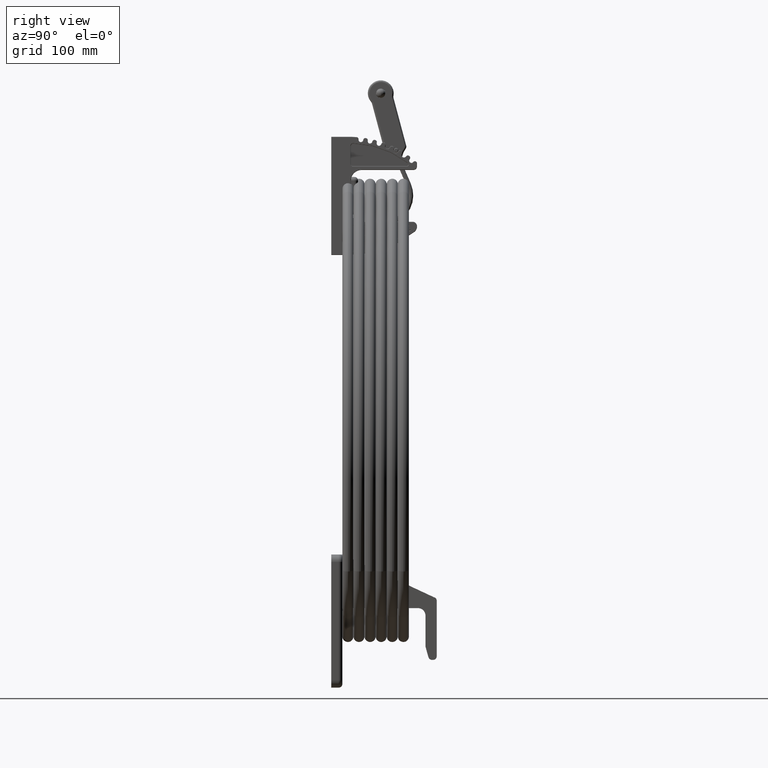
[diagram: clean part render]
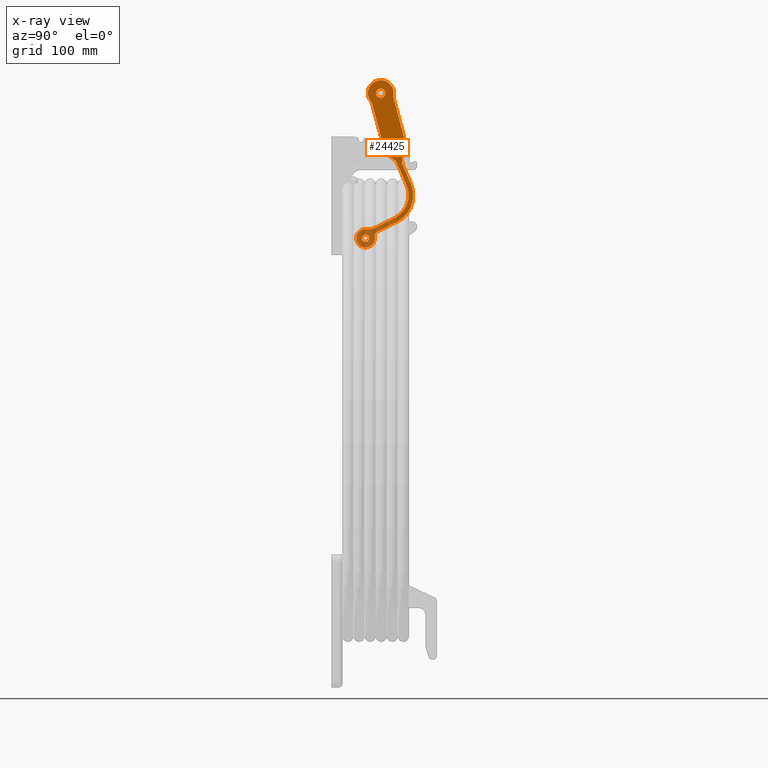
[diagram: x-ray — body ghosted, one internal face saturated and labeled with its STEP entity id]
A machine part, right view, then the same camera in x-ray: the body is ghosted and one INTERNAL B-rep face — a face not visible from any outside direction — is saturated and labeled: STEP entity #24425.
In plain terms, the highlighted planar face has unit normal (-1, 0, 0).
Its self-contained STEP definition (entity closure, byte-faithful):
#1034 = CARTESIAN_POINT ( 'NONE',  ( 0.4554401961130530900, -1.576848098390637200, 0.0000000000000000000 ) ) ;
#1040 = DIRECTION ( 'NONE',  ( 0.0000000000000000000, 0.0000000000000000000, 1.000000000000000000 ) ) ;
#1041 = DIRECTION ( 'NONE',  ( 1.000000000000000000, 0.0000000000000000000, 0.0000000000000000000 ) ) ;
#1042 = CARTESIAN_POINT ( 'NONE',  ( 2.644572853812336100, -0.02049999999999994200, 0.0000000000000000000 ) ) ;
#1044 = DIRECTION ( 'NONE',  ( -0.0000000000000000000, -0.0000000000000000000, -1.000000000000000000 ) ) ;
#1045 = DIRECTION ( 'NONE',  ( 1.000000000000000000, -3.551402391763545100E-015, 0.0000000000000000000 ) ) ;
#1048 = CARTESIAN_POINT ( 'NONE',  ( 0.7181599584110993600, -1.168933562693649500, 0.0000000000000000000 ) ) ;
#1049 = DIRECTION ( 'NONE',  ( 0.2023567821403770800, 0.9793118669360603200, 0.0000000000000000000 ) ) ;
#1050 = CARTESIAN_POINT ( 'NONE',  ( 2.644572853812336100, 0.1045000000000000400, 0.0000000000000000000 ) ) ;
#1051 = DIRECTION ( 'NONE',  ( 0.9891385689570009200, -0.1469860245115035300, 0.0000000000000000000 ) ) ;
#1054 = CARTESIAN_POINT ( 'NONE',  ( 1.207815891879129300, -1.270111953763838100, 0.0000000000000000000 ) ) ;
#1055 = DIRECTION ( 'NONE',  ( -0.0000000000000000000, -0.0000000000000000000, -1.000000000000000000 ) ) ;
#1056 = DIRECTION ( 'NONE',  ( 1.000000000000000000, 3.824587191129968100E-015, 0.0000000000000000000 ) ) ;
#1059 = CARTESIAN_POINT ( 'NONE',  ( 1.207815891879129300, -1.270111953763838100, 0.0000000000000000000 ) ) ;
#1060 = DIRECTION ( 'NONE',  ( -0.0000000000000000000, -0.0000000000000000000, -1.000000000000000000 ) ) ;
#1061 = DIRECTION ( 'NONE',  ( 1.000000000000000000, 0.0000000000000000000, 0.0000000000000000000 ) ) ;
#1065 = CARTESIAN_POINT ( 'NONE',  ( 1.702915872735392400, -0.6177902567614397300, 0.0000000000000000000 ) ) ;
#1067 = DIRECTION ( 'NONE',  ( -0.0000000000000000000, -0.0000000000000000000, -1.000000000000000000 ) ) ;
#1068 = DIRECTION ( 'NONE',  ( 1.000000000000000000, 0.0000000000000000000, 0.0000000000000000000 ) ) ;
#1089 = CARTESIAN_POINT ( 'NONE',  ( 0.4554401961130530900, -1.576848098390637200, 0.0000000000000000000 ) ) ;
#1093 = DIRECTION ( 'NONE',  ( 0.0000000000000000000, 0.0000000000000000000, 1.000000000000000000 ) ) ;
#1094 = DIRECTION ( 'NONE',  ( 1.000000000000000000, 0.0000000000000000000, 0.0000000000000000000 ) ) ;
#1098 = CARTESIAN_POINT ( 'NONE',  ( 0.4554401961130530900, -1.576848098390637200, 0.0000000000000000000 ) ) ;
#1099 = DIRECTION ( 'NONE',  ( 0.0000000000000000000, 0.0000000000000000000, 1.000000000000000000 ) ) ;
#1100 = DIRECTION ( 'NONE',  ( 1.000000000000000000, 0.0000000000000000000, 0.0000000000000000000 ) ) ;
#6412 = ORIENTED_EDGE ( 'NONE', *, *, #9688, .T. ) ;
#6413 = ORIENTED_EDGE ( 'NONE', *, *, #9683, .T. ) ;
#6414 = ORIENTED_EDGE ( 'NONE', *, *, #9690, .T. ) ;
#6415 = ORIENTED_EDGE ( 'NONE', *, *, #9684, .T. ) ;
#6416 = ORIENTED_EDGE ( 'NONE', *, *, #9681, .T. ) ;
#6417 = ORIENTED_EDGE ( 'NONE', *, *, #32606, .T. ) ;
#6418 = ORIENTED_EDGE ( 'NONE', *, *, #32607, .T. ) ;
#6419 = ORIENTED_EDGE ( 'NONE', *, *, #32608, .T. ) ;
#6420 = ORIENTED_EDGE ( 'NONE', *, *, #32617, .T. ) ;
#6421 = ORIENTED_EDGE ( 'NONE', *, *, #32618, .T. ) ;
#6422 = ORIENTED_EDGE ( 'NONE', *, *, #32615, .T. ) ;
#6423 = ORIENTED_EDGE ( 'NONE', *, *, #32616, .T. ) ;
#6424 = ORIENTED_EDGE ( 'NONE', *, *, #32613, .T. ) ;
#6425 = ORIENTED_EDGE ( 'NONE', *, *, #32614, .T. ) ;
#6426 = ORIENTED_EDGE ( 'NONE', *, *, #32611, .T. ) ;
#6427 = ORIENTED_EDGE ( 'NONE', *, *, #32612, .T. ) ;
#6428 = ORIENTED_EDGE ( 'NONE', *, *, #32609, .T. ) ;
#6429 = ORIENTED_EDGE ( 'NONE', *, *, #32610, .T. ) ;
#6430 = ORIENTED_EDGE ( 'NONE', *, *, #32699, .F. ) ;
#6431 = ORIENTED_EDGE ( 'NONE', *, *, #32620, .F. ) ;
#6432 = ORIENTED_EDGE ( 'NONE', *, *, #9617, .F. ) ;
#6433 = ORIENTED_EDGE ( 'NONE', *, *, #32619, .F. ) ;
#6434 = ORIENTED_EDGE ( 'NONE', *, *, #9613, .F. ) ;
#6435 = ORIENTED_EDGE ( 'NONE', *, *, #32621, .F. ) ;
#7809 = ORIENTED_EDGE ( 'NONE', *, *, #9680, .T. ) ;
#7810 = ORIENTED_EDGE ( 'NONE', *, *, #9702, .T. ) ;
#7811 = ORIENTED_EDGE ( 'NONE', *, *, #9700, .T. ) ;
#7812 = ORIENTED_EDGE ( 'NONE', *, *, #9686, .T. ) ;
#9613 = EDGE_CURVE ( 'NONE', #21692, #21598, #29348, .T. ) ;
#9617 = EDGE_CURVE ( 'NONE', #21656, #21404, #29353, .T. ) ;
#9680 = EDGE_CURVE ( 'NONE', #21468, #21367, #29449, .T. ) ;
#9681 = EDGE_CURVE ( 'NONE', #21567, #21561, #29451, .T. ) ;
#9683 = EDGE_CURVE ( 'NONE', #21390, #21542, #29447, .T. ) ;
#9684 = EDGE_CURVE ( 'NONE', #21558, #21567, #29454, .T. ) ;
#9686 = EDGE_CURVE ( 'NONE', #21638, #21377, #29458, .T. ) ;
#9688 = EDGE_CURVE ( 'NONE', #21377, #21390, #29460, .T. ) ;
#9690 = EDGE_CURVE ( 'NONE', #21542, #21558, #29462, .T. ) ;
#9700 = EDGE_CURVE ( 'NONE', #21663, #21638, #29476, .T. ) ;
#9702 = EDGE_CURVE ( 'NONE', #21367, #21663, #29479, .T. ) ;
#9924 = PLANE ( 'NONE',  #29147 ) ;
#9928 = CARTESIAN_POINT ( 'NONE',  ( 0.0000000000000000000, 0.0000000000000000000, 0.0000000000000000000 ) ) ;
#9929 = DIRECTION ( 'NONE',  ( 0.0000000000000000000, 0.0000000000000000000, 1.000000000000000000 ) ) ;
#9930 = DIRECTION ( 'NONE',  ( 1.000000000000000000, 0.0000000000000000000, -0.0000000000000000000 ) ) ;
#13703 = LINE ( 'NONE', #17335, #13715 ) ;
#13707 = LINE ( 'NONE', #17323, #13709 ) ;
#13709 = VECTOR ( 'NONE', #17324, 39.37007874015748100 ) ;
#13710 = LINE ( 'NONE', #17328, #13713 ) ;
#13713 = VECTOR ( 'NONE', #17329, 39.37007874015748100 ) ;
#13715 = VECTOR ( 'NONE', #17336, 39.37007874015747400 ) ;
#13716 = CIRCLE ( 'NONE', #25358, 0.5000000000000001100 ) ;
#13717 = LINE ( 'NONE', #17330, #13718 ) ;
#13718 = VECTOR ( 'NONE', #17331, 39.37007874015748900 ) ;
#13719 = LINE ( 'NONE', #17349, #13723 ) ;
#13720 = CIRCLE ( 'NONE', #25357, 0.1624932898991209000 ) ;
#13721 = CIRCLE ( 'NONE', #25360, 1.009105567046599200 ) ;
#13722 = CIRCLE ( 'NONE', #25359, 0.1249999999999999000 ) ;
#13723 = VECTOR ( 'NONE', #17350, 39.37007874015748100 ) ;
#13724 = CIRCLE ( 'NONE', #25361, 0.6250000000000000000 ) ;
#13725 = CIRCLE ( 'NONE', #25362, 0.1249999999999999000 ) ;
#13726 = CIRCLE ( 'NONE', #25364, 0.1249999999999999000 ) ;
#13727 = CIRCLE ( 'NONE', #25363, 0.4374999999999998900 ) ;
#13728 = CIRCLE ( 'NONE', #25365, 0.1562500000000019200 ) ;
#13729 = CIRCLE ( 'NONE', #25366, 0.07800000000000009700 ) ;
#13730 = CIRCLE ( 'NONE', #25356, 0.1250000000000000300 ) ;
#13814 = CIRCLE ( 'NONE', #25443, 0.07800000000000009700 ) ;
#17316 = CARTESIAN_POINT ( 'NONE',  ( 3.234208584750652500, 0.3125000000000000000, 0.0000000000000000000 ) ) ;
#17320 = CARTESIAN_POINT ( 'NONE',  ( 0.4060108721066491600, -1.104433696220825900, 0.0000000000000000000 ) ) ;
#17323 = CARTESIAN_POINT ( 'NONE',  ( 2.721370042664140100, 0.07812652677885632800, 0.0000000000000000000 ) ) ;
#17324 = DIRECTION ( 'NONE',  ( 0.7890122142308524400, -0.6143775108144238200, 0.0000000000000000000 ) ) ;
#17325 = CARTESIAN_POINT ( 'NONE',  ( 1.702915872735392400, -0.6177902567614397300, 0.0000000000000000000 ) ) ;
#17326 = DIRECTION ( 'NONE',  ( 0.0000000000000000000, 0.0000000000000000000, 1.000000000000000000 ) ) ;
#17327 = DIRECTION ( 'NONE',  ( 1.000000000000000000, 0.0000000000000000000, 0.0000000000000000000 ) ) ;
#17328 = CARTESIAN_POINT ( 'NONE',  ( 3.234208584750654800, -0.1875000000000000600, 0.0000000000000000000 ) ) ;
#17329 = DIRECTION ( 'NONE',  ( 1.000000000000000000, -4.348422046066390200E-017, 0.0000000000000000000 ) ) ;
#17330 = CARTESIAN_POINT ( 'NONE',  ( 0.5651424792023397300, -1.137315315484215500, 0.0000000000000000000 ) ) ;
#17331 = DIRECTION ( 'NONE',  ( -0.2023567821403768600, -0.9793118669360603200, 0.0000000000000000000 ) ) ;
#17332 = CARTESIAN_POINT ( 'NONE',  ( 3.127005977522338200, 0.4375000000000001700, 0.0000000000000000000 ) ) ;
#17333 = DIRECTION ( 'NONE',  ( -0.0000000000000000000, -0.0000000000000000000, -1.000000000000000000 ) ) ;
#17334 = DIRECTION ( 'NONE',  ( 1.000000000000000000, 8.406033244081184400E-016, 0.0000000000000000000 ) ) ;
#17335 = CARTESIAN_POINT ( 'NONE',  ( 1.851240288347998400, 0.3803549797535765700, 0.0000000000000000000 ) ) ;
#17336 = DIRECTION ( 'NONE',  ( -0.9891385689570010300, 0.1469860245115031900, 0.0000000000000000000 ) ) ;
#17337 = CARTESIAN_POINT ( 'NONE',  ( 2.535879563826081800, 0.8990945873064399900, 0.0000000000000000000 ) ) ;
#17338 = DIRECTION ( 'NONE',  ( 0.0000000000000000000, 0.0000000000000000000, 1.000000000000000000 ) ) ;
#17339 = DIRECTION ( 'NONE',  ( 1.000000000000000000, 0.0000000000000000000, 0.0000000000000000000 ) ) ;
#17340 = CARTESIAN_POINT ( 'NONE',  ( 4.804805898398895700, 0.6875000000000000000, 0.0000000000000000000 ) ) ;
#17341 = DIRECTION ( 'NONE',  ( 0.0000000000000000000, 0.0000000000000000000, 1.000000000000000000 ) ) ;
#17342 = DIRECTION ( 'NONE',  ( 1.000000000000000000, 0.0000000000000000000, 0.0000000000000000000 ) ) ;
#17343 = CARTESIAN_POINT ( 'NONE',  ( 4.804805898398895700, -0.3125000000000001700, 0.0000000000000000000 ) ) ;
#17344 = DIRECTION ( 'NONE',  ( -0.0000000000000000000, -0.0000000000000000000, -1.000000000000000000 ) ) ;
#17345 = DIRECTION ( 'NONE',  ( 1.000000000000000000, -8.741913579725642300E-016, 0.0000000000000000000 ) ) ;
#17346 = CARTESIAN_POINT ( 'NONE',  ( 5.062500000000000000, 0.1874999999999999200, 0.0000000000000000000 ) ) ;
#17347 = DIRECTION ( 'NONE',  ( -0.0000000000000000000, -0.0000000000000000000, -1.000000000000000000 ) ) ;
#17348 = DIRECTION ( 'NONE',  ( 1.000000000000000000, -1.092739197465706100E-015, 0.0000000000000000000 ) ) ;
#17349 = CARTESIAN_POINT ( 'NONE',  ( 3.127005977522338200, 0.5625000000000002200, 0.0000000000000000000 ) ) ;
#17350 = DIRECTION ( 'NONE',  ( -1.000000000000000000, 1.628232281854575500E-016, 0.0000000000000000000 ) ) ;
#17351 = CARTESIAN_POINT ( 'NONE',  ( 5.062500000000000000, 0.1874999999999999200, 0.0000000000000000000 ) ) ;
#17352 = DIRECTION ( 'NONE',  ( -0.0000000000000000000, -0.0000000000000000000, -1.000000000000000000 ) ) ;
#17353 = DIRECTION ( 'NONE',  ( 1.000000000000000000, -1.639108796198559100E-015, 0.0000000000000000000 ) ) ;
#17354 = CARTESIAN_POINT ( 'NONE',  ( 3.062500000000000000, 0.1874999999999999200, 0.0000000000000000000 ) ) ;
#17355 = DIRECTION ( 'NONE',  ( 0.0000000000000000000, 0.0000000000000000000, 1.000000000000000000 ) ) ;
#17356 = DIRECTION ( 'NONE',  ( 1.000000000000000000, 0.0000000000000000000, 0.0000000000000000000 ) ) ;
#17357 = DIRECTION ( 'NONE',  ( 0.0000000000000000000, 0.0000000000000000000, 1.000000000000000000 ) ) ;
#17358 = DIRECTION ( 'NONE',  ( 1.000000000000000000, 0.0000000000000000000, 0.0000000000000000000 ) ) ;
#17360 = DIRECTION ( 'NONE',  ( 0.0000000000000000000, 0.0000000000000000000, 1.000000000000000000 ) ) ;
#17361 = DIRECTION ( 'NONE',  ( 1.000000000000000000, 0.0000000000000000000, 0.0000000000000000000 ) ) ;
#17362 = CARTESIAN_POINT ( 'NONE',  ( 0.4554401961130530900, -1.576848098390637200, 0.0000000000000000000 ) ) ;
#17363 = DIRECTION ( 'NONE',  ( 0.0000000000000000000, 0.0000000000000000000, 1.000000000000000000 ) ) ;
#17364 = DIRECTION ( 'NONE',  ( 1.000000000000000000, 0.0000000000000000000, 0.0000000000000000000 ) ) ;
#17586 = CARTESIAN_POINT ( 'NONE',  ( 3.062500000000000000, 0.1874999999999999200, 0.0000000000000000000 ) ) ;
#17595 = DIRECTION ( 'NONE',  ( 0.0000000000000000000, 0.0000000000000000000, 1.000000000000000000 ) ) ;
#17596 = DIRECTION ( 'NONE',  ( 1.000000000000000000, 0.0000000000000000000, 0.0000000000000000000 ) ) ;
#18083 = EDGE_LOOP ( 'NONE', ( #6434, #6435 ) ) ;
#18084 = EDGE_LOOP ( 'NONE', ( #6432, #6433 ) ) ;
#18086 = EDGE_LOOP ( 'NONE', ( #6430, #6431 ) ) ;
#18088 = EDGE_LOOP ( 'NONE', ( #7809, #7810, #7811, #7812, #6412, #6413, #6414, #6415, #6416, #6417, #6418, #6419, #6420, #6421, #6422, #6423, #6424, #6425, #6426, #6427, #6428, #6429 ) ) ;
#20071 = CARTESIAN_POINT ( 'NONE',  ( 2.984499999999999700, 0.1874999999999999200, 0.0000000000000000000 ) ) ;
#20073 = CARTESIAN_POINT ( 'NONE',  ( 0.1429401961130530600, -1.576848098390637200, 0.0000000000000000000 ) ) ;
#20074 = CARTESIAN_POINT ( 'NONE',  ( 0.7146868159354151700, -0.4135909013739492200, 1.365923996832131600E-016 ) ) ;
#20079 = CARTESIAN_POINT ( 'NONE',  ( 0.7078158918791294100, -1.270111953763838100, 0.0000000000000000000 ) ) ;
#20086 = CARTESIAN_POINT ( 'NONE',  ( 0.7181599584110993600, -1.168933562693649500, 1.365923996832131600E-016 ) ) ;
#20091 = CARTESIAN_POINT ( 'NONE',  ( 4.862071254310252200, -0.2013888888888888100, 1.365923996832131600E-016 ) ) ;
#20092 = CARTESIAN_POINT ( 'NONE',  ( 3.234208584750654800, -0.1875000000000000600, 1.365923996832131600E-016 ) ) ;
#20093 = CARTESIAN_POINT ( 'NONE',  ( 5.218750000000001800, 0.1874999999999999400, 0.0000000000000000000 ) ) ;
#20112 = CARTESIAN_POINT ( 'NONE',  ( 3.140499999999999800, 0.1874999999999999200, 0.0000000000000000000 ) ) ;
#20118 = CARTESIAN_POINT ( 'NONE',  ( 1.851240288347998400, 0.3803549797535765700, 1.365923996832131600E-016 ) ) ;
#20119 = CARTESIAN_POINT ( 'NONE',  ( 3.127005977522338200, 0.5625000000000002200, 1.365923996832131600E-016 ) ) ;
#20123 = CARTESIAN_POINT ( 'NONE',  ( 4.804805898398895700, -0.1875000000000000800, 1.365923996832131600E-016 ) ) ;
#20126 = CARTESIAN_POINT ( 'NONE',  ( 0.4229204446123912600, -1.266044759022581000, 1.365923996832131600E-016 ) ) ;
#20135 = CARTESIAN_POINT ( 'NONE',  ( 4.804805898398895700, 0.5624999999999998900, 1.365923996832131600E-016 ) ) ;
#20146 = CARTESIAN_POINT ( 'NONE',  ( 4.862071254310252200, 0.5763888888888888400, 1.365923996832131600E-016 ) ) ;
#20150 = CARTESIAN_POINT ( 'NONE',  ( 3.028484908572962400, 0.5144324312177399600, 1.365923996832131600E-016 ) ) ;
#20163 = CARTESIAN_POINT ( 'NONE',  ( 0.8677042951441749100, -0.4452091485833831700, 1.365923996832131600E-016 ) ) ;
#20171 = CARTESIAN_POINT ( 'NONE',  ( 1.828273722018075800, 0.2258020783540451700, 1.365923996832131600E-016 ) ) ;
#20173 = CARTESIAN_POINT ( 'NONE',  ( 2.721370042664140100, 0.07812652677885632800, 1.365923996832131600E-016 ) ) ;
#20176 = CARTESIAN_POINT ( 'NONE',  ( 2.644572853812336100, 0.1045000000000001900, 1.365923996832131600E-016 ) ) ;
#20183 = CARTESIAN_POINT ( 'NONE',  ( 2.927019829343439700, -0.08200610711542515000, 1.365923996832131600E-016 ) ) ;
#20192 = CARTESIAN_POINT ( 'NONE',  ( 0.5804401961130530900, -1.576848098390637200, 0.0000000000000000000 ) ) ;
#20203 = CARTESIAN_POINT ( 'NONE',  ( 2.562500000000000000, 0.2746617627545026000, 1.365923996832131600E-016 ) ) ;
#20211 = CARTESIAN_POINT ( 'NONE',  ( 0.5651424792023397300, -1.137315315484215500, 1.365923996832131600E-016 ) ) ;
#20212 = CARTESIAN_POINT ( 'NONE',  ( 0.7448154637153900900, -1.458872658149560600, 1.365923996832131600E-016 ) ) ;
#20221 = CARTESIAN_POINT ( 'NONE',  ( 4.906249999999998200, 0.1874999999999999200, 0.0000000000000000000 ) ) ;
#20224 = CARTESIAN_POINT ( 'NONE',  ( 0.7679401961130530900, -1.576848098390637200, 0.0000000000000000000 ) ) ;
#20240 = CARTESIAN_POINT ( 'NONE',  ( 0.3304401961130530300, -1.576848098390637200, 0.0000000000000000000 ) ) ;
#21364 = VERTEX_POINT ( 'NONE', #20071 ) ;
#21367 = VERTEX_POINT ( 'NONE', #20073 ) ;
#21369 = VERTEX_POINT ( 'NONE', #20074 ) ;
#21377 = VERTEX_POINT ( 'NONE', #20079 ) ;
#21390 = VERTEX_POINT ( 'NONE', #20086 ) ;
#21400 = VERTEX_POINT ( 'NONE', #20091 ) ;
#21402 = VERTEX_POINT ( 'NONE', #20092 ) ;
#21404 = VERTEX_POINT ( 'NONE', #20093 ) ;
#21441 = VERTEX_POINT ( 'NONE', #20112 ) ;
#21452 = VERTEX_POINT ( 'NONE', #20118 ) ;
#21454 = VERTEX_POINT ( 'NONE', #20119 ) ;
#21463 = VERTEX_POINT ( 'NONE', #20123 ) ;
#21468 = VERTEX_POINT ( 'NONE', #20126 ) ;
#21487 = VERTEX_POINT ( 'NONE', #20135 ) ;
#21509 = VERTEX_POINT ( 'NONE', #20146 ) ;
#21515 = VERTEX_POINT ( 'NONE', #20150 ) ;
#21542 = VERTEX_POINT ( 'NONE', #20163 ) ;
#21558 = VERTEX_POINT ( 'NONE', #20171 ) ;
#21561 = VERTEX_POINT ( 'NONE', #20173 ) ;
#21567 = VERTEX_POINT ( 'NONE', #20176 ) ;
#21580 = VERTEX_POINT ( 'NONE', #20183 ) ;
#21598 = VERTEX_POINT ( 'NONE', #20192 ) ;
#21619 = VERTEX_POINT ( 'NONE', #20203 ) ;
#21636 = VERTEX_POINT ( 'NONE', #20211 ) ;
#21638 = VERTEX_POINT ( 'NONE', #20212 ) ;
#21656 = VERTEX_POINT ( 'NONE', #20221 ) ;
#21663 = VERTEX_POINT ( 'NONE', #20224 ) ;
#21692 = VERTEX_POINT ( 'NONE', #20240 ) ;
#24425 = ADVANCED_FACE ( 'NONE', ( #30970, #30971, #30973, #30975 ), #9924, .T. ) ;
#25356 = AXIS2_PLACEMENT_3D ( 'NONE', #17362, #17363, #17364 ) ;
#25357 = AXIS2_PLACEMENT_3D ( 'NONE', #17320, #17333, #17334 ) ;
#25358 = AXIS2_PLACEMENT_3D ( 'NONE', #17316, #17326, #17327 ) ;
#25359 = AXIS2_PLACEMENT_3D ( 'NONE', #17332, #17341, #17342 ) ;
#25360 = AXIS2_PLACEMENT_3D ( 'NONE', #17325, #17338, #17339 ) ;
#25361 = AXIS2_PLACEMENT_3D ( 'NONE', #17337, #17344, #17345 ) ;
#25362 = AXIS2_PLACEMENT_3D ( 'NONE', #17340, #17347, #17348 ) ;
#25363 = AXIS2_PLACEMENT_3D ( 'NONE', #17346, #17355, #17356 ) ;
#25364 = AXIS2_PLACEMENT_3D ( 'NONE', #17343, #17352, #17353 ) ;
#25365 = AXIS2_PLACEMENT_3D ( 'NONE', #17351, #17357, #17358 ) ;
#25366 = AXIS2_PLACEMENT_3D ( 'NONE', #17354, #17360, #17361 ) ;
#25443 = AXIS2_PLACEMENT_3D ( 'NONE', #17586, #17595, #17596 ) ;
#28761 = AXIS2_PLACEMENT_3D ( 'NONE', #33938, #33940, #33942 ) ;
#28762 = AXIS2_PLACEMENT_3D ( 'NONE', #33944, #33951, #33952 ) ;
#28789 = AXIS2_PLACEMENT_3D ( 'NONE', #1042, #1044, #1045 ) ;
#28791 = AXIS2_PLACEMENT_3D ( 'NONE', #1034, #1040, #1041 ) ;
#28792 = AXIS2_PLACEMENT_3D ( 'NONE', #1054, #1055, #1056 ) ;
#28795 = AXIS2_PLACEMENT_3D ( 'NONE', #1059, #1060, #1061 ) ;
#28797 = AXIS2_PLACEMENT_3D ( 'NONE', #1065, #1067, #1068 ) ;
#28802 = AXIS2_PLACEMENT_3D ( 'NONE', #1089, #1093, #1094 ) ;
#28805 = AXIS2_PLACEMENT_3D ( 'NONE', #1098, #1099, #1100 ) ;
#29147 = AXIS2_PLACEMENT_3D ( 'NONE', #9928, #9929, #9930 ) ;
#29348 = CIRCLE ( 'NONE', #28761, 0.1250000000000000300 ) ;
#29353 = CIRCLE ( 'NONE', #28762, 0.1562500000000019200 ) ;
#29447 = LINE ( 'NONE', #1048, #29450 ) ;
#29449 = CIRCLE ( 'NONE', #28791, 0.3125000000000000000 ) ;
#29450 = VECTOR ( 'NONE', #1049, 39.37007874015748100 ) ;
#29451 = CIRCLE ( 'NONE', #28789, 0.1249999999999999000 ) ;
#29454 = LINE ( 'NONE', #1050, #29455 ) ;
#29455 = VECTOR ( 'NONE', #1051, 39.37007874015748100 ) ;
#29458 = CIRCLE ( 'NONE', #28792, 0.5000000000000000000 ) ;
#29460 = CIRCLE ( 'NONE', #28795, 0.5000000000000000000 ) ;
#29462 = CIRCLE ( 'NONE', #28797, 0.8528555670465993700 ) ;
#29476 = CIRCLE ( 'NONE', #28802, 0.3125000000000000000 ) ;
#29479 = CIRCLE ( 'NONE', #28805, 0.3125000000000000000 ) ;
#30970 = FACE_OUTER_BOUND ( 'NONE', #18088, .T. ) ;
#30971 = FACE_BOUND ( 'NONE', #18086, .T. ) ;
#30973 = FACE_BOUND ( 'NONE', #18084, .T. ) ;
#30975 = FACE_BOUND ( 'NONE', #18083, .T. ) ;
#32606 = EDGE_CURVE ( 'NONE', #21561, #21580, #13707, .T. ) ;
#32607 = EDGE_CURVE ( 'NONE', #21580, #21402, #13716, .T. ) ;
#32608 = EDGE_CURVE ( 'NONE', #21402, #21463, #13710, .T. ) ;
#32609 = EDGE_CURVE ( 'NONE', #21369, #21636, #13717, .T. ) ;
#32610 = EDGE_CURVE ( 'NONE', #21636, #21468, #13720, .T. ) ;
#32611 = EDGE_CURVE ( 'NONE', #21619, #21452, #13703, .T. ) ;
#32612 = EDGE_CURVE ( 'NONE', #21452, #21369, #13721, .T. ) ;
#32613 = EDGE_CURVE ( 'NONE', #21454, #21515, #13722, .T. ) ;
#32614 = EDGE_CURVE ( 'NONE', #21515, #21619, #13724, .T. ) ;
#32615 = EDGE_CURVE ( 'NONE', #21509, #21487, #13725, .T. ) ;
#32616 = EDGE_CURVE ( 'NONE', #21487, #21454, #13719, .T. ) ;
#32617 = EDGE_CURVE ( 'NONE', #21463, #21400, #13726, .T. ) ;
#32618 = EDGE_CURVE ( 'NONE', #21400, #21509, #13727, .T. ) ;
#32619 = EDGE_CURVE ( 'NONE', #21404, #21656, #13728, .T. ) ;
#32620 = EDGE_CURVE ( 'NONE', #21441, #21364, #13729, .T. ) ;
#32621 = EDGE_CURVE ( 'NONE', #21598, #21692, #13730, .T. ) ;
#32699 = EDGE_CURVE ( 'NONE', #21364, #21441, #13814, .T. ) ;
#33938 = CARTESIAN_POINT ( 'NONE',  ( 0.4554401961130530900, -1.576848098390637200, 0.0000000000000000000 ) ) ;
#33940 = DIRECTION ( 'NONE',  ( 0.0000000000000000000, 0.0000000000000000000, 1.000000000000000000 ) ) ;
#33942 = DIRECTION ( 'NONE',  ( 1.000000000000000000, 0.0000000000000000000, 0.0000000000000000000 ) ) ;
#33944 = CARTESIAN_POINT ( 'NONE',  ( 5.062500000000000000, 0.1874999999999999200, 0.0000000000000000000 ) ) ;
#33951 = DIRECTION ( 'NONE',  ( 0.0000000000000000000, 0.0000000000000000000, 1.000000000000000000 ) ) ;
#33952 = DIRECTION ( 'NONE',  ( 1.000000000000000000, 0.0000000000000000000, 0.0000000000000000000 ) ) ;